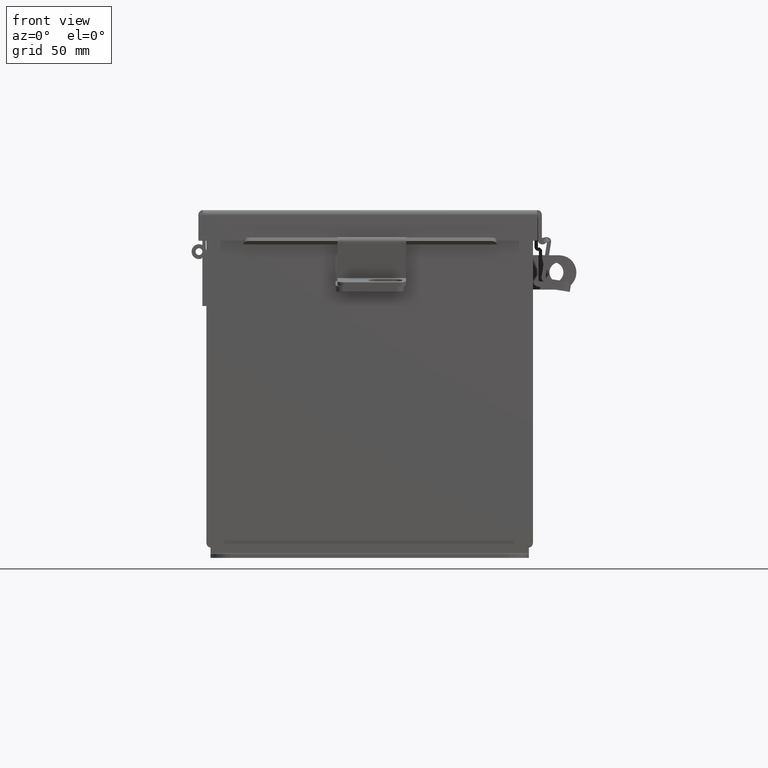
[diagram: clean part render]
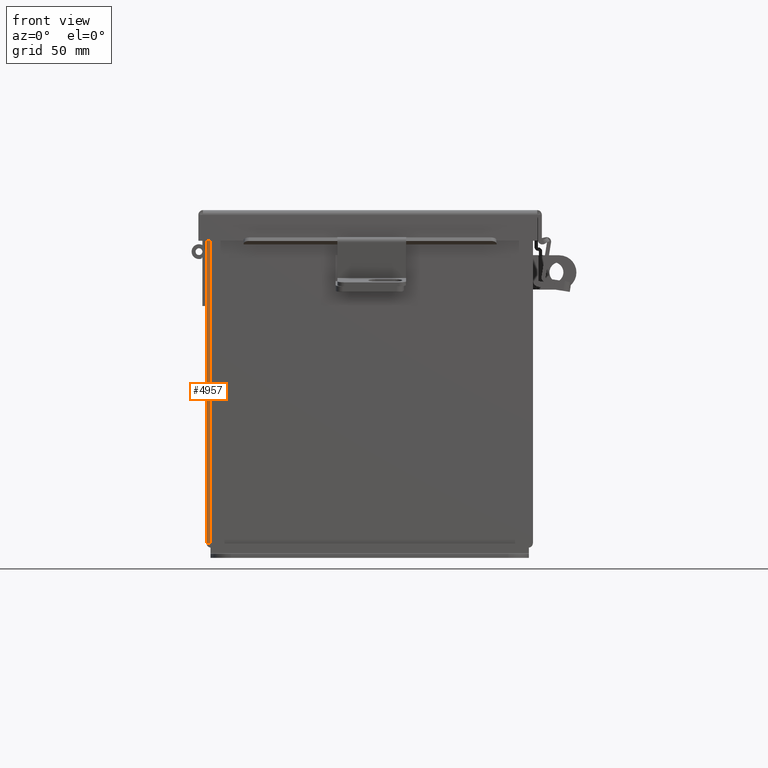
[diagram: same view with one face highlighted and labeled with its STEP entity id]
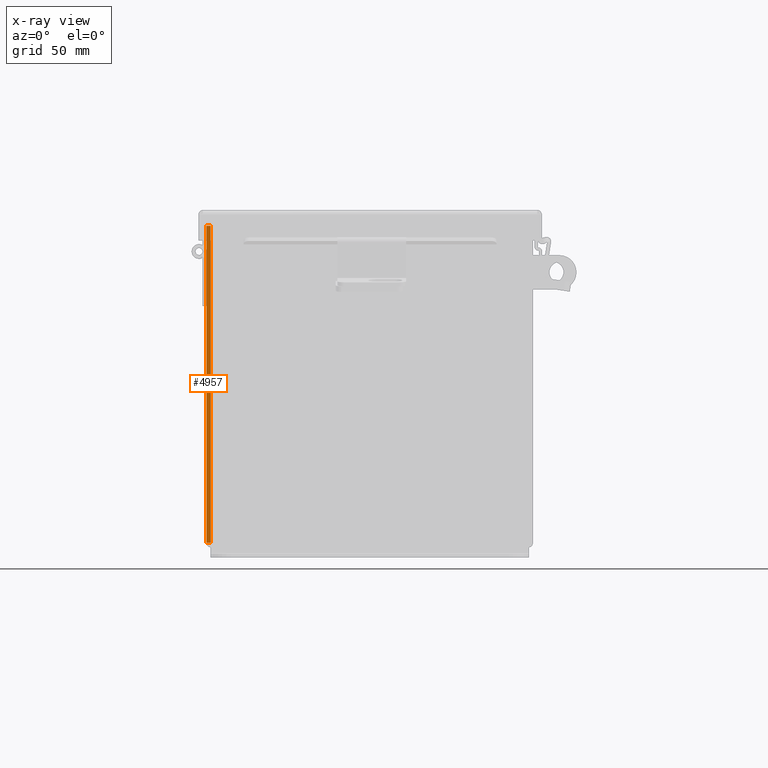
[diagram: x-ray of the same camera — body ghosted, the highlighted face saturated]
A machine part, front view. The second image highlights one B-rep face of the part: STEP entity #4957.
The next image is the same camera in x-ray: the body ghosted, the highlighted face saturated — about 0% of this face is hidden behind the body in this view.
In plain terms, the highlighted planar face has unit normal (0, 1, -0).
Its self-contained STEP definition (entity closure, byte-faithful):
#683 = DIRECTION ( 'NONE',  ( -3.455316574900958600E-015, 1.867738689135653700E-016, 1.000000000000000000 ) ) ;
#861 = ORIENTED_EDGE ( 'NONE', *, *, #3818, .F. ) ;
#1118 = DIRECTION ( 'NONE',  ( -3.455316574900958600E-015, 1.867738689135653700E-016, 1.000000000000000000 ) ) ;
#1322 = AXIS2_PLACEMENT_3D ( 'NONE', #3375, #11679, #4559 ) ;
#1898 = ORIENTED_EDGE ( 'NONE', *, *, #11044, .F. ) ;
#2404 = VECTOR ( 'NONE', #683, 39.37007874015748100 ) ;
#2779 = LINE ( 'NONE', #3029, #2404 ) ;
#3029 = CARTESIAN_POINT ( 'NONE',  ( -2.925300000000019600, -3.925299999999998200, 5.850600000000000000 ) ) ;
#3375 = CARTESIAN_POINT ( 'NONE',  ( -3.000000000000020000, -3.925299999999998200, 5.850600000000000000 ) ) ;
#3444 = VERTEX_POINT ( 'NONE', #12838 ) ;
#3818 = EDGE_CURVE ( 'NONE', #3444, #4801, #3870, .T. ) ;
#3870 = LINE ( 'NONE', #10297, #9795 ) ;
#4143 = DIRECTION ( 'NONE',  ( -1.000000000000000000, 0.0000000000000000000, 0.0000000000000000000 ) ) ;
#4293 = ORIENTED_EDGE ( 'NONE', *, *, #14694, .T. ) ;
#4336 = DIRECTION ( 'NONE',  ( -1.000000000000000000, 8.758115402030108600E-047, -3.491481338843133000E-015 ) ) ;
#4361 = VERTEX_POINT ( 'NONE', #7148 ) ;
#4559 = DIRECTION ( 'NONE',  ( 0.0000000000000000000, 1.867738689135653700E-016, 1.000000000000000000 ) ) ;
#4801 = VERTEX_POINT ( 'NONE', #6639 ) ;
#4957 = ADVANCED_FACE ( 'NONE', ( #14783 ), #8105, .F. ) ;
#5044 = CARTESIAN_POINT ( 'NONE',  ( -2.925300000000019600, -3.925299999999998200, 5.837600000000000100 ) ) ;
#5569 = ORIENTED_EDGE ( 'NONE', *, *, #13406, .T. ) ;
#5848 = CARTESIAN_POINT ( 'NONE',  ( -2.999999999999999600, -3.925299999999999100, -9.894411952052753600E-015 ) ) ;
#5983 = VERTEX_POINT ( 'NONE', #5044 ) ;
#6639 = CARTESIAN_POINT ( 'NONE',  ( -2.999999999999999600, -3.925299999999999100, 0.01299999999999929700 ) ) ;
#7148 = CARTESIAN_POINT ( 'NONE',  ( -3.000000000000018700, -3.925299999999998200, 5.837600000000000100 ) ) ;
#7740 = LINE ( 'NONE', #10047, #10542 ) ;
#7950 = EDGE_LOOP ( 'NONE', ( #4293, #1898, #861, #5569 ) ) ;
#8105 = PLANE ( 'NONE',  #1322 ) ;
#9795 = VECTOR ( 'NONE', #4336, 39.37007874015748100 ) ;
#10047 = CARTESIAN_POINT ( 'NONE',  ( -2.925300000000018700, -3.925299999999998200, 5.837600000000000100 ) ) ;
#10297 = CARTESIAN_POINT ( 'NONE',  ( -2.925299999999999600, -3.925299999999999100, 0.01299999999999956900 ) ) ;
#10542 = VECTOR ( 'NONE', #4143, 39.37007874015748100 ) ;
#11044 = EDGE_CURVE ( 'NONE', #4801, #4361, #14365, .T. ) ;
#11231 = VECTOR ( 'NONE', #1118, 39.37007874015748100 ) ;
#11679 = DIRECTION ( 'NONE',  ( 6.521174778952470300E-031, 1.000000000000000000, -1.867738689135653700E-016 ) ) ;
#12838 = CARTESIAN_POINT ( 'NONE',  ( -2.925299999999999600, -3.925299999999999100, 0.01299999999999951900 ) ) ;
#13406 = EDGE_CURVE ( 'NONE', #3444, #5983, #2779, .T. ) ;
#14365 = LINE ( 'NONE', #5848, #11231 ) ;
#14694 = EDGE_CURVE ( 'NONE', #5983, #4361, #7740, .T. ) ;
#14783 = FACE_OUTER_BOUND ( 'NONE', #7950, .T. ) ;